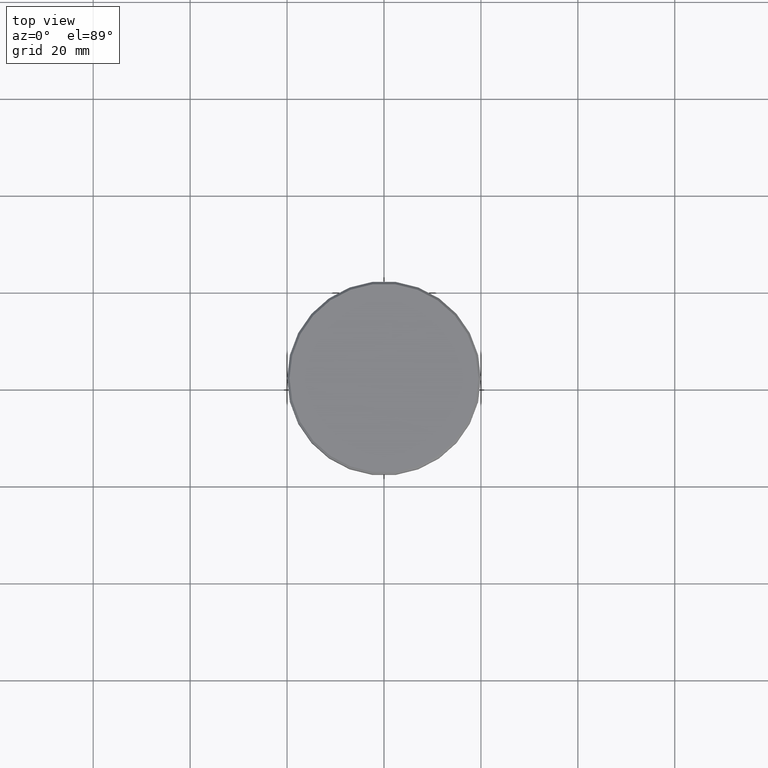
[diagram: clean part render]
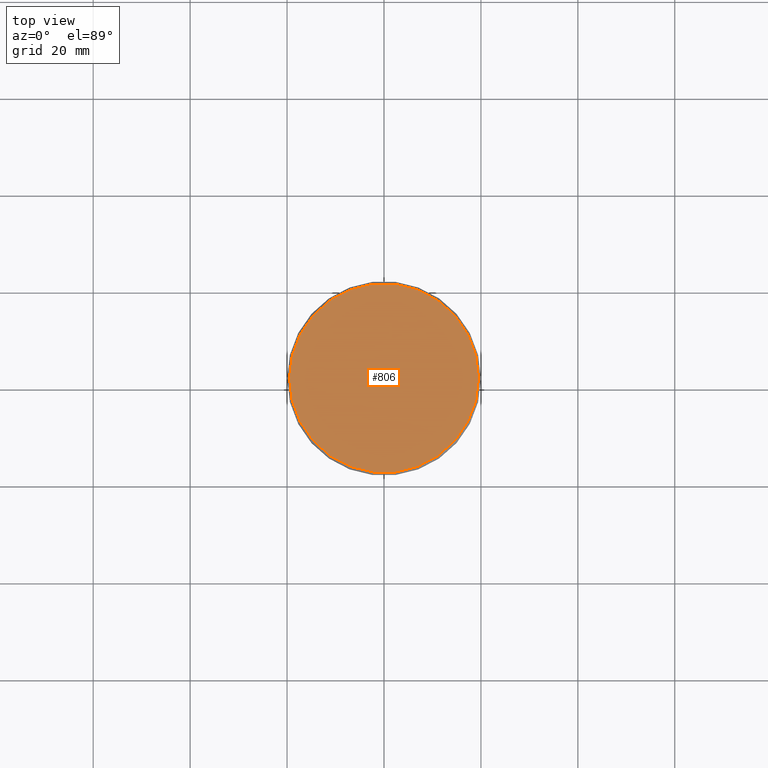
[diagram: same view with one face highlighted and labeled with its STEP entity id]
A machine part, top view. The second image highlights one B-rep face of the part: STEP entity #806.
In plain terms, the highlighted planar face has unit normal (0, -0, 1).
Its self-contained STEP definition (entity closure, byte-faithful):
#15 = CARTESIAN_POINT ( 'NONE',  ( 19.49999999999998934, 2.418677428316021937E-15, 0.000000000000000000 ) ) ;
#85 = CIRCLE ( 'NONE', #830, 19.49999999999998934 ) ;
#89 = EDGE_LOOP ( 'NONE', ( #246, #866 ) ) ;
#109 = CIRCLE ( 'NONE', #556, 19.49999999999998934 ) ;
#142 = CARTESIAN_POINT ( 'NONE',  ( 0.000000000000000000, 0.000000000000000000, 0.000000000000000000 ) ) ;
#149 = VERTEX_POINT ( 'NONE', #15 ) ;
#243 = DIRECTION ( 'NONE',  ( 1.000000000000000000, 0.000000000000000000, 0.000000000000000000 ) ) ;
#246 = ORIENTED_EDGE ( 'NONE', *, *, #1133, .T. ) ;
#285 = EDGE_CURVE ( 'NONE', #149, #419, #85, .T. ) ;
#311 = DIRECTION ( 'NONE',  ( 1.000000000000000000, 0.000000000000000000, 0.000000000000000000 ) ) ;
#407 = FACE_OUTER_BOUND ( 'NONE', #89, .T. ) ;
#419 = VERTEX_POINT ( 'NONE', #515 ) ;
#514 = PLANE ( 'NONE',  #812 ) ;
#515 = CARTESIAN_POINT ( 'NONE',  ( -19.49999999999998934, 0.000000000000000000, 0.000000000000000000 ) ) ;
#520 = DIRECTION ( 'NONE',  ( 0.000000000000000000, -0.000000000000000000, 1.000000000000000000 ) ) ;
#556 = AXIS2_PLACEMENT_3D ( 'NONE', #658, #669, #1183 ) ;
#658 = CARTESIAN_POINT ( 'NONE',  ( 0.000000000000000000, 0.000000000000000000, 0.000000000000000000 ) ) ;
#664 = CARTESIAN_POINT ( 'NONE',  ( 0.000000000000000000, 0.000000000000000000, 0.000000000000000000 ) ) ;
#669 = DIRECTION ( 'NONE',  ( -0.000000000000000000, -0.000000000000000000, 1.000000000000000000 ) ) ;
#806 = ADVANCED_FACE ( 'NONE', ( #407 ), #514, .T. ) ;
#812 = AXIS2_PLACEMENT_3D ( 'NONE', #142, #520, #243 ) ;
#830 = AXIS2_PLACEMENT_3D ( 'NONE', #664, #1106, #311 ) ;
#866 = ORIENTED_EDGE ( 'NONE', *, *, #285, .T. ) ;
#1106 = DIRECTION ( 'NONE',  ( -0.000000000000000000, -0.000000000000000000, 1.000000000000000000 ) ) ;
#1133 = EDGE_CURVE ( 'NONE', #419, #149, #109, .T. ) ;
#1183 = DIRECTION ( 'NONE',  ( 1.000000000000000000, 0.000000000000000000, 0.000000000000000000 ) ) ;